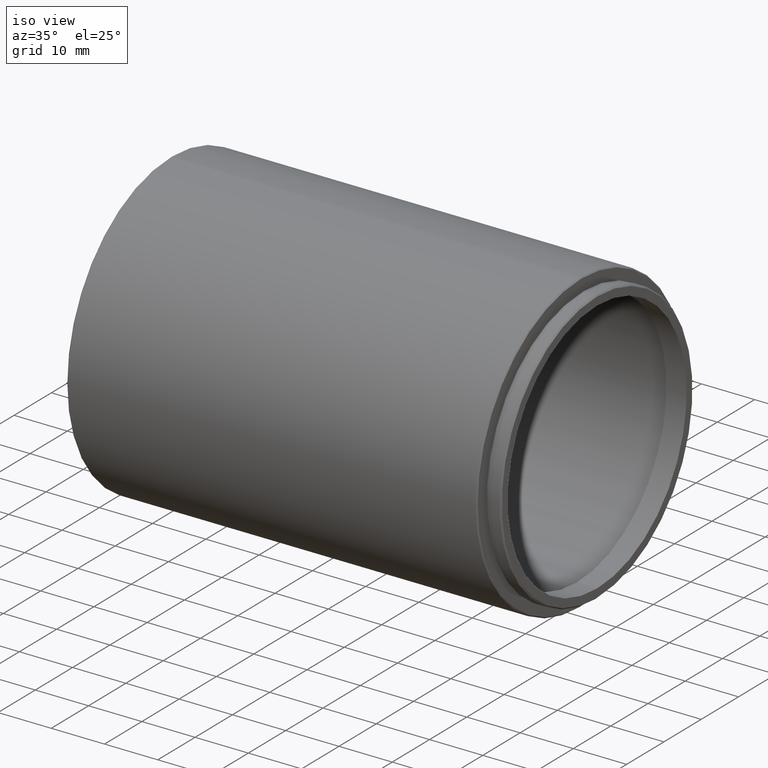
[diagram: clean part render]
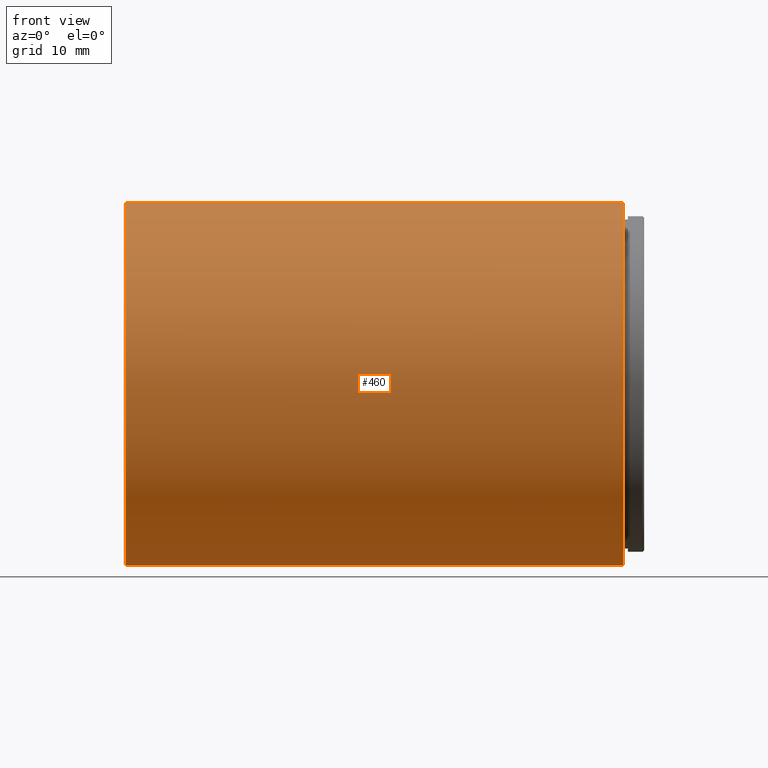
[diagram: tour spotlight — one face highlighted and labeled with its STEP entity id]
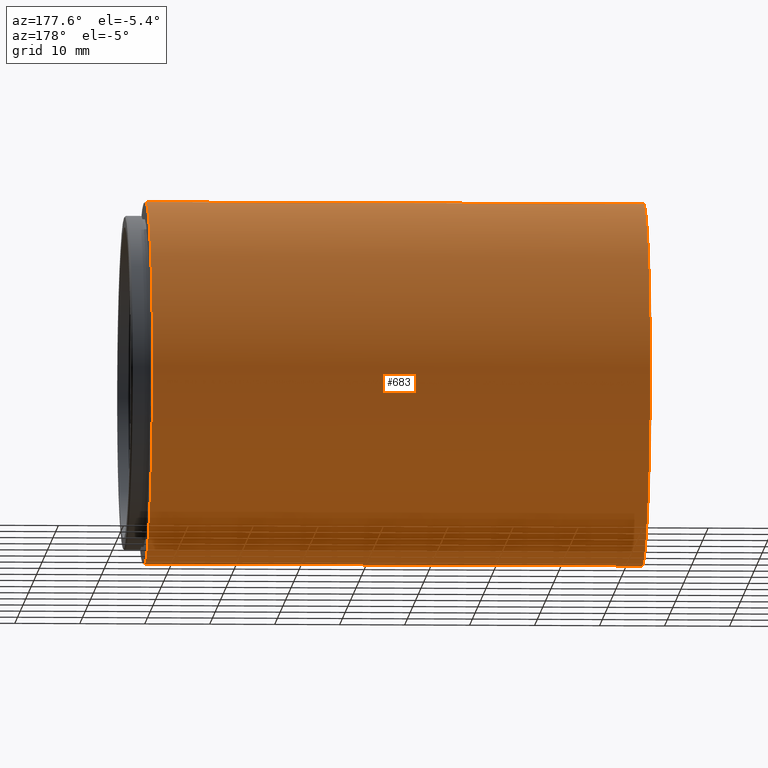
[diagram: tour spotlight — one face highlighted and labeled with its STEP entity id]
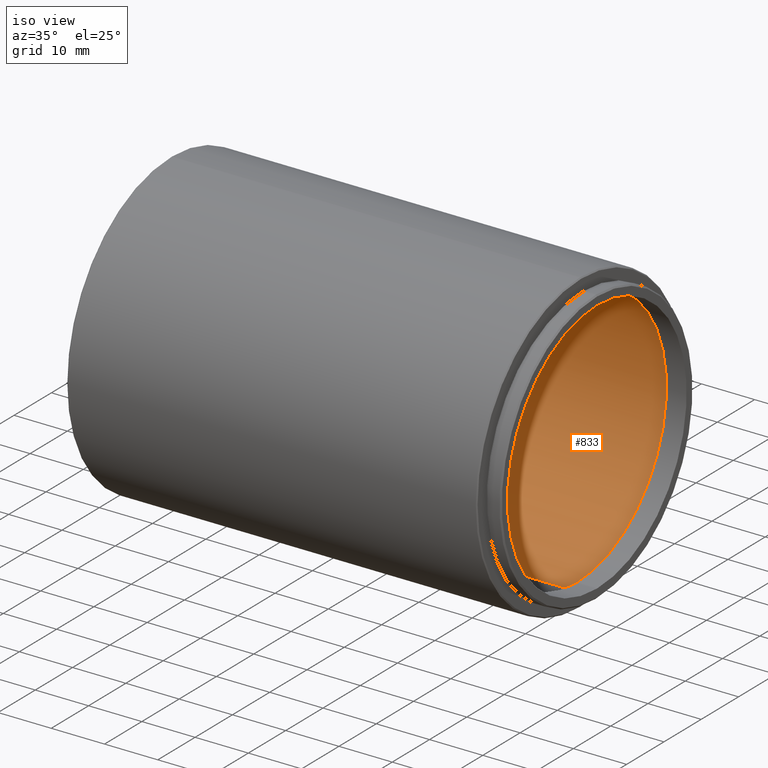
[diagram: tour spotlight — one face highlighted and labeled with its STEP entity id]
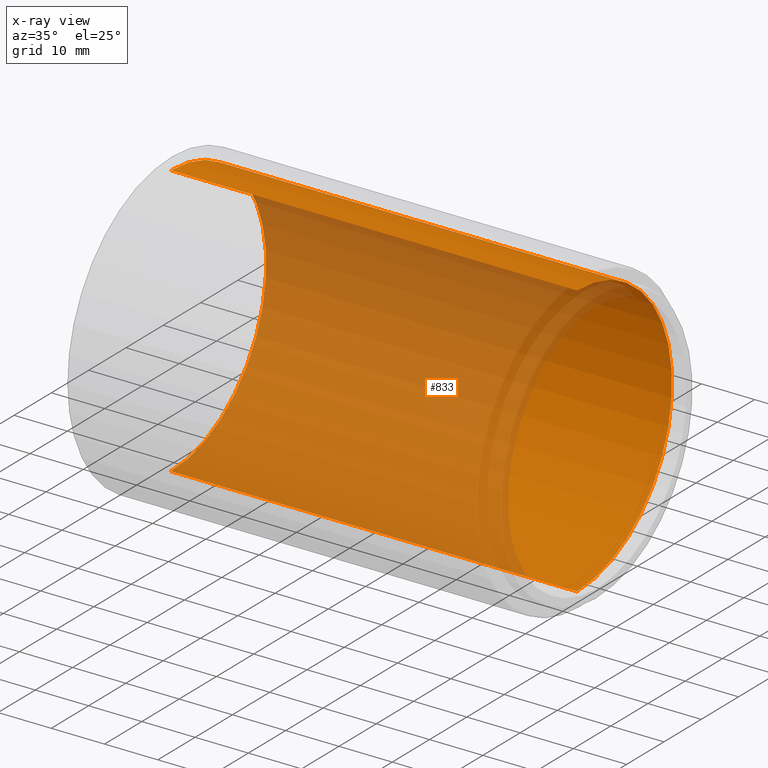
[diagram: x-ray of the same camera — body ghosted, this tour face saturated]
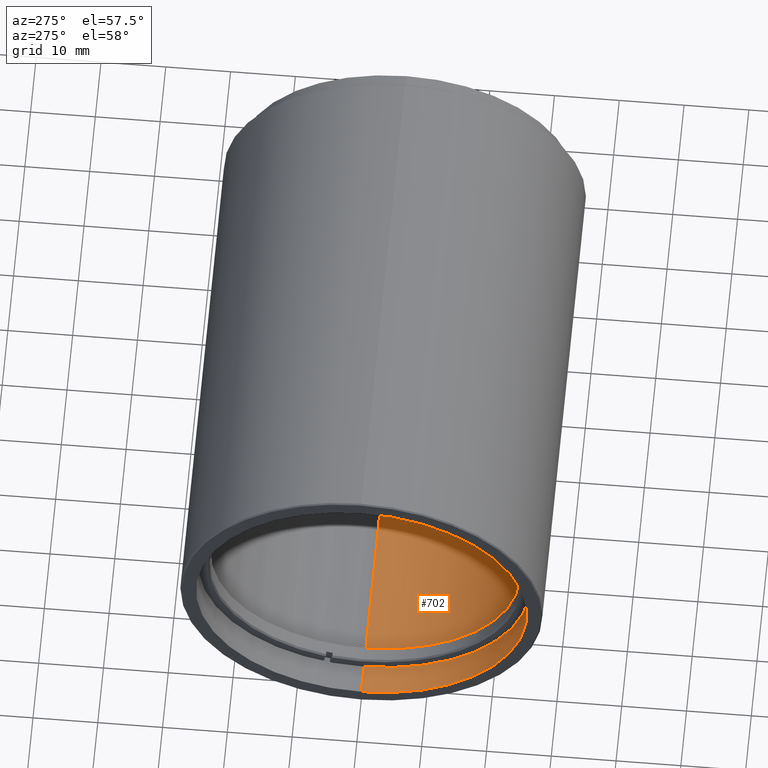
[diagram: tour spotlight — one face highlighted and labeled with its STEP entity id]
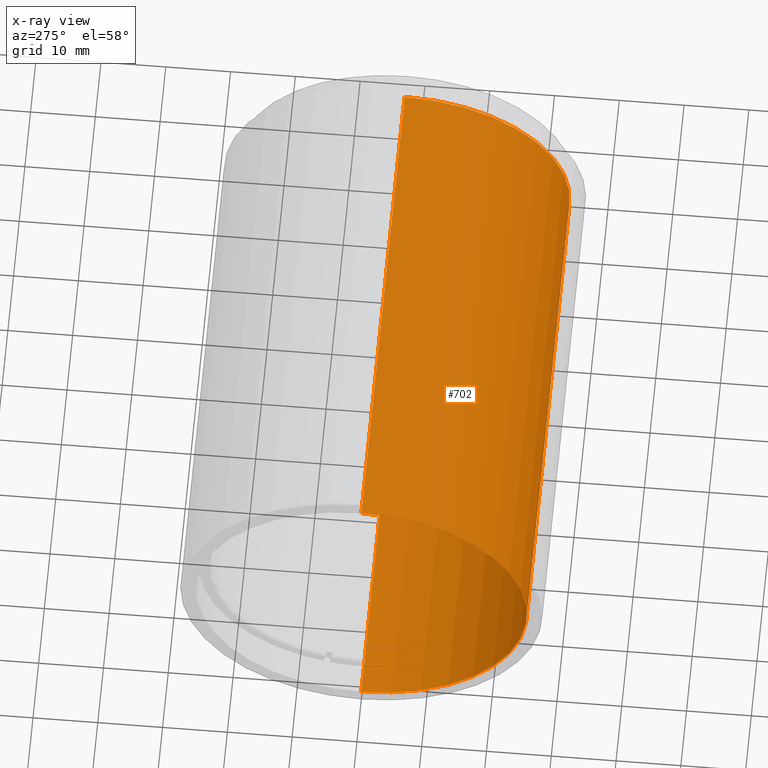
[diagram: x-ray of the same camera — body ghosted, this tour face saturated]
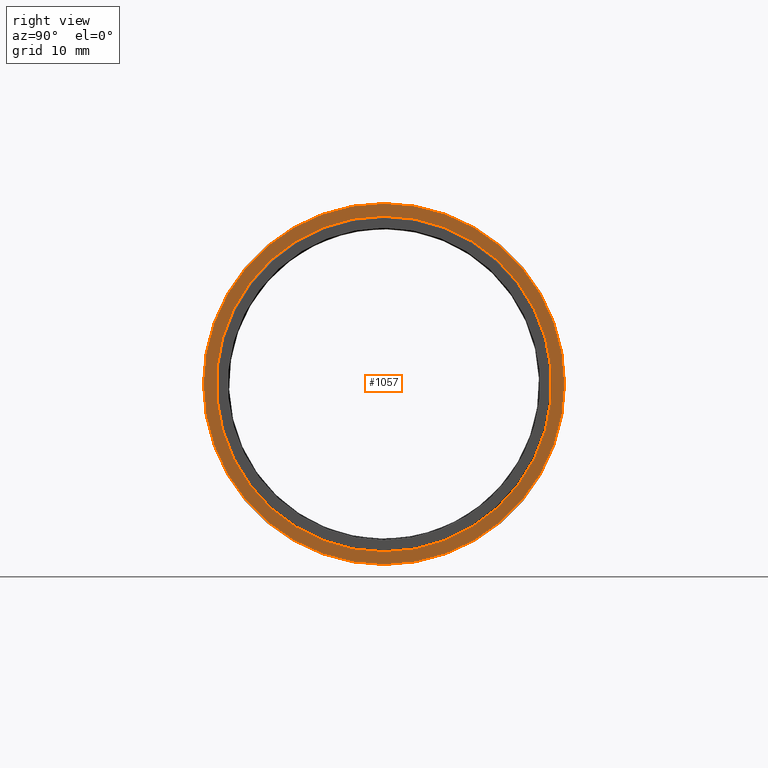
[diagram: tour spotlight — one face highlighted and labeled with its STEP entity id]
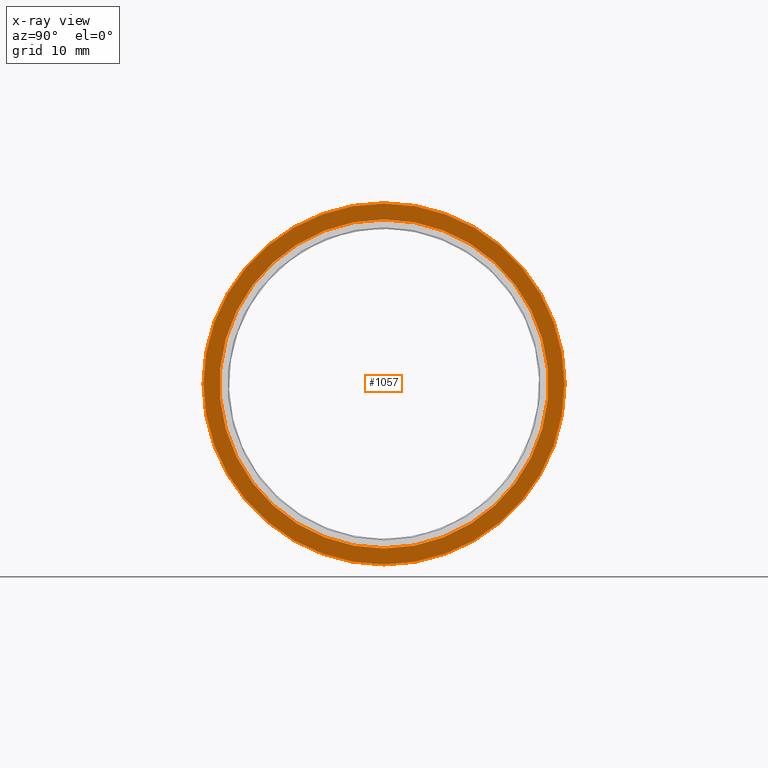
[diagram: x-ray of the same camera — body ghosted, this tour face saturated]
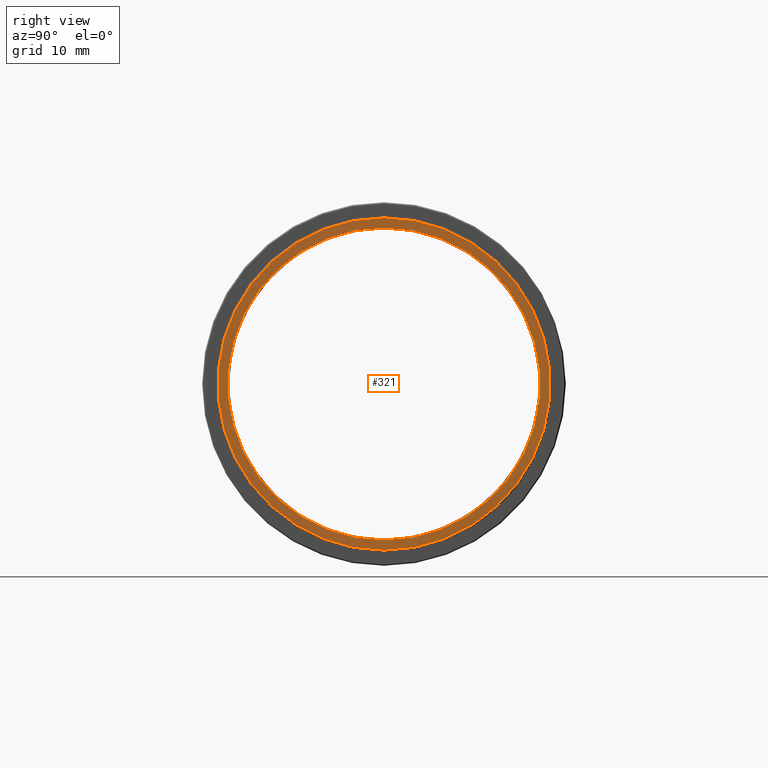
[diagram: tour spotlight — one face highlighted and labeled with its STEP entity id]
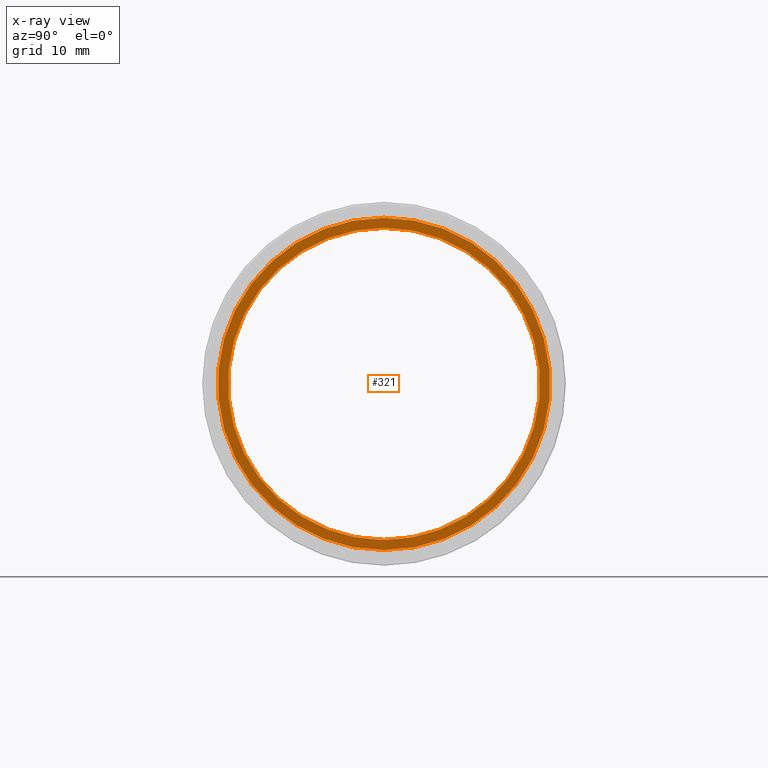
[diagram: x-ray of the same camera — body ghosted, this tour face saturated]
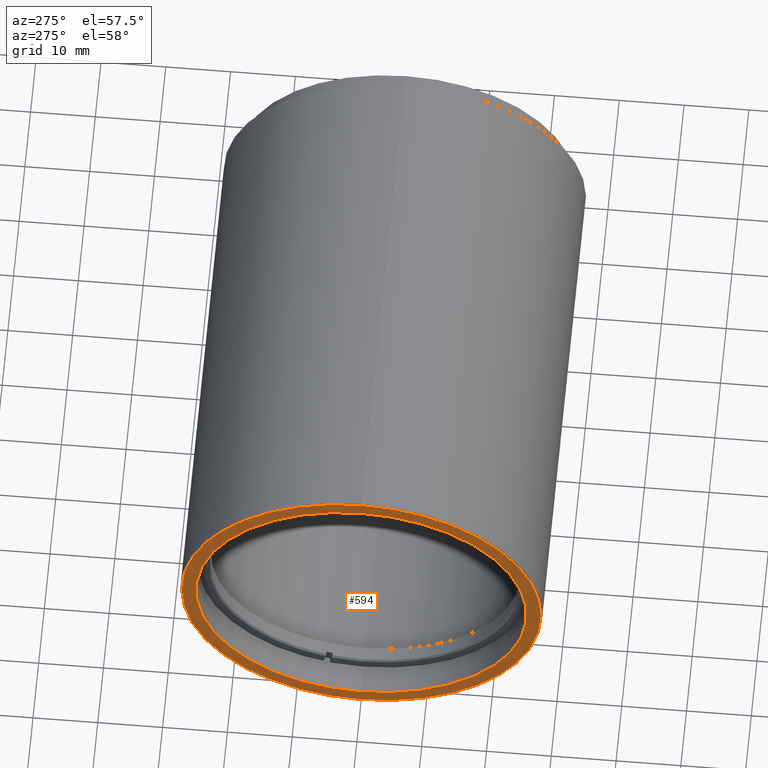
[diagram: tour spotlight — one face highlighted and labeled with its STEP entity id]
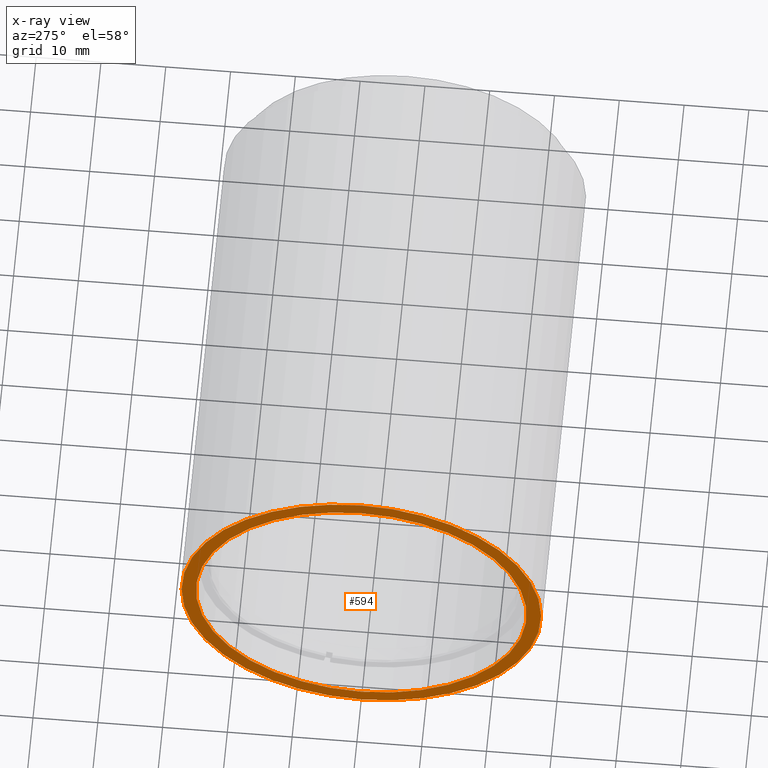
[diagram: x-ray of the same camera — body ghosted, this tour face saturated]
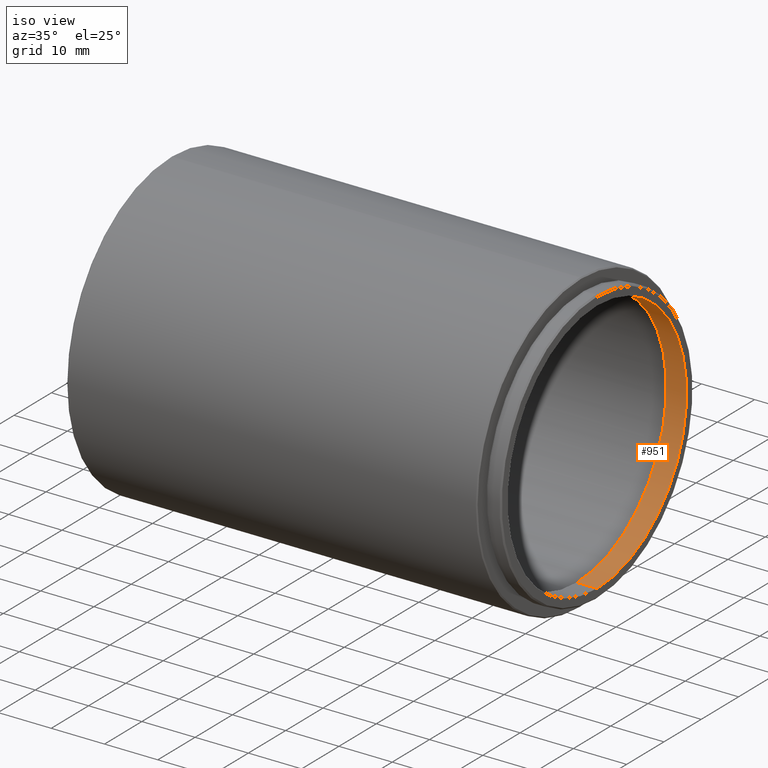
[diagram: tour spotlight — one face highlighted and labeled with its STEP entity id]
A machine part: a face-by-face anatomy tour. The part has 34 B-rep faces; the first image is the clean iso view, then the 8 largest visible faces are spotlighted one at a time (largest first), each with its STEP entity span.

Face 1 — front view, entity #460. In plain terms, the highlighted cylindrical surface (partial cylindrical patch) has radius 27.95 mm, axis along (-1, -0, -0).
Definition (entity closure, byte-faithful):
#83 = DIRECTION ( 'NONE',  ( 1.000000000000000000, 0.000000000000000000, 0.000000000000000000 ) ) ;
#133 = ORIENTED_EDGE ( 'NONE', *, *, #140, .F. ) ;
#140 = EDGE_CURVE ( 'NONE', #1204, #844, #1220, .T. ) ;
#145 = AXIS2_PLACEMENT_3D ( 'NONE', #708, #602, #593 ) ;
#161 = CYLINDRICAL_SURFACE ( 'NONE', #145, 27.94999999999999929 ) ;
#228 = CARTESIAN_POINT ( 'NONE',  ( -73.27400000000001512, -20.10857142857141611, -27.94999999999999929 ) ) ;
#268 = DIRECTION ( 'NONE',  ( -1.000000000000000000, -0.000000000000000000, -0.000000000000000000 ) ) ;
#330 = CARTESIAN_POINT ( 'NONE',  ( 3.326000000000004952, -20.10857142857141966, 27.94999999999999929 ) ) ;
#331 = EDGE_CURVE ( 'NONE', #1459, #565, #859, .T. ) ;
#338 = ORIENTED_EDGE ( 'NONE', *, *, #361, .T. ) ;
#361 = EDGE_CURVE ( 'NONE', #1204, #1459, #653, .T. ) ;
#385 = AXIS2_PLACEMENT_3D ( 'NONE', #816, #83, #445 ) ;
#445 = DIRECTION ( 'NONE',  ( 0.000000000000000000, 0.000000000000000000, 1.000000000000000000 ) ) ;
#460 = ADVANCED_FACE ( 'NONE', ( #1008 ), #161, .T. ) ;
#467 = DIRECTION ( 'NONE',  ( -1.000000000000000000, 0.000000000000000000, 0.000000000000000000 ) ) ;
#565 = VERTEX_POINT ( 'NONE', #858 ) ;
#593 = DIRECTION ( 'NONE',  ( 0.000000000000000000, 0.000000000000000000, 1.000000000000000000 ) ) ;
#602 = DIRECTION ( 'NONE',  ( -1.000000000000000000, -0.000000000000000000, -0.000000000000000000 ) ) ;
#653 = CIRCLE ( 'NONE', #1364, 27.94999999999999929 ) ;
#708 = CARTESIAN_POINT ( 'NONE',  ( 3.525999999999982926, -20.10857142857141966, 0.000000000000000000 ) ) ;
#720 = ORIENTED_EDGE ( 'NONE', *, *, #331, .T. ) ;
#726 = DIRECTION ( 'NONE',  ( 0.000000000000000000, 0.000000000000000000, -1.000000000000000000 ) ) ;
#816 = CARTESIAN_POINT ( 'NONE',  ( -73.27400000000001512, -20.10857142857141966, 0.000000000000000000 ) ) ;
#819 = DIRECTION ( 'NONE',  ( -1.000000000000000000, -0.000000000000000000, -0.000000000000000000 ) ) ;
#844 = VERTEX_POINT ( 'NONE', #228 ) ;
#858 = CARTESIAN_POINT ( 'NONE',  ( -73.27400000000001512, -20.10857142857141966, 27.94999999999999929 ) ) ;
#859 = LINE ( 'NONE', #1297, #1112 ) ;
#908 = CIRCLE ( 'NONE', #385, 27.94999999999999929 ) ;
#1008 = FACE_OUTER_BOUND ( 'NONE', #1134, .T. ) ;
#1071 = VECTOR ( 'NONE', #268, 1000.000000000000000 ) ;
#1090 = CARTESIAN_POINT ( 'NONE',  ( 3.326000000000004952, -20.10857142857141966, 0.000000000000000000 ) ) ;
#1112 = VECTOR ( 'NONE', #819, 1000.000000000000000 ) ;
#1134 = EDGE_LOOP ( 'NONE', ( #133, #338, #720, #1435 ) ) ;
#1204 = VERTEX_POINT ( 'NONE', #1307 ) ;
#1220 = LINE ( 'NONE', #1489, #1071 ) ;
#1297 = CARTESIAN_POINT ( 'NONE',  ( 3.525999999999982926, -20.10857142857141966, 27.94999999999999929 ) ) ;
#1307 = CARTESIAN_POINT ( 'NONE',  ( 3.326000000000004952, -20.10857142857141611, -27.94999999999999929 ) ) ;
#1364 = AXIS2_PLACEMENT_3D ( 'NONE', #1090, #467, #726 ) ;
#1435 = ORIENTED_EDGE ( 'NONE', *, *, #1448, .T. ) ;
#1448 = EDGE_CURVE ( 'NONE', #565, #844, #908, .T. ) ;
#1459 = VERTEX_POINT ( 'NONE', #330 ) ;
#1489 = CARTESIAN_POINT ( 'NONE',  ( 3.525999999999982926, -20.10857142857141611, -27.94999999999999929 ) ) ;

Face 2 — auxiliary view, entity #683. In plain terms, the highlighted cylindrical surface (partial cylindrical patch) has radius 27.95 mm, axis along (-1, -0, -0).
Definition (entity closure, byte-faithful):
#21 = CARTESIAN_POINT ( 'NONE',  ( 3.525999999999982926, -20.10857142857141966, 0.000000000000000000 ) ) ;
#43 = FACE_OUTER_BOUND ( 'NONE', #643, .T. ) ;
#140 = EDGE_CURVE ( 'NONE', #1204, #844, #1220, .T. ) ;
#224 = AXIS2_PLACEMENT_3D ( 'NONE', #21, #1505, #1019 ) ;
#228 = CARTESIAN_POINT ( 'NONE',  ( -73.27400000000001512, -20.10857142857141611, -27.94999999999999929 ) ) ;
#268 = DIRECTION ( 'NONE',  ( -1.000000000000000000, -0.000000000000000000, -0.000000000000000000 ) ) ;
#269 = ORIENTED_EDGE ( 'NONE', *, *, #1514, .T. ) ;
#283 = DIRECTION ( 'NONE',  ( -1.000000000000000000, 0.000000000000000000, 0.000000000000000000 ) ) ;
#296 = CIRCLE ( 'NONE', #1177, 27.94999999999999929 ) ;
#330 = CARTESIAN_POINT ( 'NONE',  ( 3.326000000000004952, -20.10857142857141966, 27.94999999999999929 ) ) ;
#331 = EDGE_CURVE ( 'NONE', #1459, #565, #859, .T. ) ;
#473 = CARTESIAN_POINT ( 'NONE',  ( -73.27400000000001512, -20.10857142857141966, 0.000000000000000000 ) ) ;
#483 = DIRECTION ( 'NONE',  ( 0.000000000000000000, 0.000000000000000000, 1.000000000000000000 ) ) ;
#565 = VERTEX_POINT ( 'NONE', #858 ) ;
#606 = EDGE_CURVE ( 'NONE', #1459, #1204, #948, .T. ) ;
#639 = CARTESIAN_POINT ( 'NONE',  ( 3.326000000000004952, -20.10857142857141966, 0.000000000000000000 ) ) ;
#643 = EDGE_LOOP ( 'NONE', ( #1391, #1200, #269, #1080 ) ) ;
#683 = ADVANCED_FACE ( 'NONE', ( #43 ), #1552, .T. ) ;
#752 = DIRECTION ( 'NONE',  ( 0.000000000000000000, 0.000000000000000000, -1.000000000000000000 ) ) ;
#819 = DIRECTION ( 'NONE',  ( -1.000000000000000000, -0.000000000000000000, -0.000000000000000000 ) ) ;
#844 = VERTEX_POINT ( 'NONE', #228 ) ;
#858 = CARTESIAN_POINT ( 'NONE',  ( -73.27400000000001512, -20.10857142857141966, 27.94999999999999929 ) ) ;
#859 = LINE ( 'NONE', #1297, #1112 ) ;
#948 = CIRCLE ( 'NONE', #1230, 27.94999999999999929 ) ;
#1019 = DIRECTION ( 'NONE',  ( 0.000000000000000000, 0.000000000000000000, 1.000000000000000000 ) ) ;
#1071 = VECTOR ( 'NONE', #268, 1000.000000000000000 ) ;
#1080 = ORIENTED_EDGE ( 'NONE', *, *, #331, .F. ) ;
#1112 = VECTOR ( 'NONE', #819, 1000.000000000000000 ) ;
#1177 = AXIS2_PLACEMENT_3D ( 'NONE', #473, #1325, #483 ) ;
#1200 = ORIENTED_EDGE ( 'NONE', *, *, #140, .T. ) ;
#1204 = VERTEX_POINT ( 'NONE', #1307 ) ;
#1220 = LINE ( 'NONE', #1489, #1071 ) ;
#1230 = AXIS2_PLACEMENT_3D ( 'NONE', #639, #283, #752 ) ;
#1297 = CARTESIAN_POINT ( 'NONE',  ( 3.525999999999982926, -20.10857142857141966, 27.94999999999999929 ) ) ;
#1307 = CARTESIAN_POINT ( 'NONE',  ( 3.326000000000004952, -20.10857142857141611, -27.94999999999999929 ) ) ;
#1325 = DIRECTION ( 'NONE',  ( 1.000000000000000000, 0.000000000000000000, 0.000000000000000000 ) ) ;
#1391 = ORIENTED_EDGE ( 'NONE', *, *, #606, .T. ) ;
#1459 = VERTEX_POINT ( 'NONE', #330 ) ;
#1489 = CARTESIAN_POINT ( 'NONE',  ( 3.525999999999982926, -20.10857142857141611, -27.94999999999999929 ) ) ;
#1505 = DIRECTION ( 'NONE',  ( -1.000000000000000000, -0.000000000000000000, -0.000000000000000000 ) ) ;
#1514 = EDGE_CURVE ( 'NONE', #844, #565, #296, .T. ) ;
#1552 = CYLINDRICAL_SURFACE ( 'NONE', #224, 27.94999999999999929 ) ;

Face 3 — iso view, entity #833. An x-ray twin of the same camera follows (body ghosted, this face saturated) — the face is partly hidden behind the body. In plain terms, the highlighted cylindrical surface (partial cylindrical patch) has radius 25.525 mm, axis along (1, -0, -0).
Definition (entity closure, byte-faithful):
#33 = CARTESIAN_POINT ( 'NONE',  ( 2.725999999999982659, -20.10857142857141611, 25.52499999999999858 ) ) ;
#55 = CYLINDRICAL_SURFACE ( 'NONE', #923, 25.52499999999999858 ) ;
#58 = CARTESIAN_POINT ( 'NONE',  ( 2.725999999999982659, -20.10857142857141966, 0.000000000000000000 ) ) ;
#152 = VERTEX_POINT ( 'NONE', #33 ) ;
#234 = ORIENTED_EDGE ( 'NONE', *, *, #1305, .F. ) ;
#299 = CARTESIAN_POINT ( 'NONE',  ( 2.725999999999982659, -20.10857142857141966, -25.52499999999999858 ) ) ;
#302 = ORIENTED_EDGE ( 'NONE', *, *, #373, .T. ) ;
#347 = AXIS2_PLACEMENT_3D ( 'NONE', #58, #411, #1269 ) ;
#373 = EDGE_CURVE ( 'NONE', #1184, #820, #895, .T. ) ;
#411 = DIRECTION ( 'NONE',  ( -1.000000000000000000, 0.000000000000000000, 0.000000000000000000 ) ) ;
#430 = VECTOR ( 'NONE', #716, 1000.000000000000000 ) ;
#439 = CARTESIAN_POINT ( 'NONE',  ( -73.47400000000001796, -20.10857142857141966, 0.000000000000000000 ) ) ;
#458 = CARTESIAN_POINT ( 'NONE',  ( -73.47400000000001796, -20.10857142857141966, 0.000000000000000000 ) ) ;
#470 = CARTESIAN_POINT ( 'NONE',  ( -73.47400000000001796, -20.10857142857141611, 25.52499999999999858 ) ) ;
#519 = LINE ( 'NONE', #470, #430 ) ;
#579 = DIRECTION ( 'NONE',  ( 0.000000000000000000, 0.000000000000000000, 1.000000000000000000 ) ) ;
#662 = CARTESIAN_POINT ( 'NONE',  ( -73.47400000000001796, -20.10857142857141966, -25.52499999999999858 ) ) ;
#669 = VECTOR ( 'NONE', #1210, 1000.000000000000000 ) ;
#677 = ORIENTED_EDGE ( 'NONE', *, *, #1478, .T. ) ;
#716 = DIRECTION ( 'NONE',  ( 1.000000000000000000, -0.000000000000000000, -0.000000000000000000 ) ) ;
#739 = AXIS2_PLACEMENT_3D ( 'NONE', #458, #961, #579 ) ;
#763 = VERTEX_POINT ( 'NONE', #299 ) ;
#801 = EDGE_CURVE ( 'NONE', #152, #763, #1573, .T. ) ;
#815 = DIRECTION ( 'NONE',  ( 1.000000000000000000, -0.000000000000000000, -0.000000000000000000 ) ) ;
#820 = VERTEX_POINT ( 'NONE', #662 ) ;
#826 = DIRECTION ( 'NONE',  ( 0.000000000000000000, 0.000000000000000000, -1.000000000000000000 ) ) ;
#833 = ADVANCED_FACE ( 'NONE', ( #1397 ), #55, .F. ) ;
#895 = CIRCLE ( 'NONE', #739, 25.52499999999999858 ) ;
#923 = AXIS2_PLACEMENT_3D ( 'NONE', #439, #815, #826 ) ;
#942 = CARTESIAN_POINT ( 'NONE',  ( -73.47400000000001796, -20.10857142857141611, 25.52499999999999858 ) ) ;
#961 = DIRECTION ( 'NONE',  ( -1.000000000000000000, 0.000000000000000000, 0.000000000000000000 ) ) ;
#1005 = LINE ( 'NONE', #1203, #669 ) ;
#1116 = EDGE_LOOP ( 'NONE', ( #234, #302, #677, #1583 ) ) ;
#1184 = VERTEX_POINT ( 'NONE', #942 ) ;
#1203 = CARTESIAN_POINT ( 'NONE',  ( -73.47400000000001796, -20.10857142857141966, -25.52499999999999858 ) ) ;
#1210 = DIRECTION ( 'NONE',  ( 1.000000000000000000, -0.000000000000000000, -0.000000000000000000 ) ) ;
#1269 = DIRECTION ( 'NONE',  ( 0.000000000000000000, 0.000000000000000000, 1.000000000000000000 ) ) ;
#1305 = EDGE_CURVE ( 'NONE', #1184, #152, #519, .T. ) ;
#1397 = FACE_OUTER_BOUND ( 'NONE', #1116, .T. ) ;
#1478 = EDGE_CURVE ( 'NONE', #820, #763, #1005, .T. ) ;
#1573 = CIRCLE ( 'NONE', #347, 25.52499999999999858 ) ;
#1583 = ORIENTED_EDGE ( 'NONE', *, *, #801, .F. ) ;

Face 4 — auxiliary view, entity #702. An x-ray twin of the same camera follows (body ghosted, this face saturated) — the face is partly hidden behind the body. In plain terms, the highlighted cylindrical surface (partial cylindrical patch) has radius 25.525 mm, axis along (1, -0, -0).
Definition (entity closure, byte-faithful):
#8 = CYLINDRICAL_SURFACE ( 'NONE', #1105, 25.52499999999999858 ) ;
#33 = CARTESIAN_POINT ( 'NONE',  ( 2.725999999999982659, -20.10857142857141611, 25.52499999999999858 ) ) ;
#147 = DIRECTION ( 'NONE',  ( -1.000000000000000000, 0.000000000000000000, 0.000000000000000000 ) ) ;
#152 = VERTEX_POINT ( 'NONE', #33 ) ;
#189 = ORIENTED_EDGE ( 'NONE', *, *, #1305, .T. ) ;
#299 = CARTESIAN_POINT ( 'NONE',  ( 2.725999999999982659, -20.10857142857141966, -25.52499999999999858 ) ) ;
#405 = DIRECTION ( 'NONE',  ( 0.000000000000000000, 0.000000000000000000, 1.000000000000000000 ) ) ;
#430 = VECTOR ( 'NONE', #716, 1000.000000000000000 ) ;
#463 = CARTESIAN_POINT ( 'NONE',  ( 2.725999999999982659, -20.10857142857141966, 0.000000000000000000 ) ) ;
#470 = CARTESIAN_POINT ( 'NONE',  ( -73.47400000000001796, -20.10857142857141611, 25.52499999999999858 ) ) ;
#480 = AXIS2_PLACEMENT_3D ( 'NONE', #463, #589, #718 ) ;
#519 = LINE ( 'NONE', #470, #430 ) ;
#523 = AXIS2_PLACEMENT_3D ( 'NONE', #1361, #147, #405 ) ;
#589 = DIRECTION ( 'NONE',  ( -1.000000000000000000, 0.000000000000000000, 0.000000000000000000 ) ) ;
#627 = EDGE_CURVE ( 'NONE', #820, #1184, #1268, .T. ) ;
#632 = CIRCLE ( 'NONE', #480, 25.52499999999999858 ) ;
#642 = ORIENTED_EDGE ( 'NONE', *, *, #862, .F. ) ;
#662 = CARTESIAN_POINT ( 'NONE',  ( -73.47400000000001796, -20.10857142857141966, -25.52499999999999858 ) ) ;
#669 = VECTOR ( 'NONE', #1210, 1000.000000000000000 ) ;
#702 = ADVANCED_FACE ( 'NONE', ( #1422 ), #8, .F. ) ;
#716 = DIRECTION ( 'NONE',  ( 1.000000000000000000, -0.000000000000000000, -0.000000000000000000 ) ) ;
#718 = DIRECTION ( 'NONE',  ( 0.000000000000000000, 0.000000000000000000, 1.000000000000000000 ) ) ;
#763 = VERTEX_POINT ( 'NONE', #299 ) ;
#820 = VERTEX_POINT ( 'NONE', #662 ) ;
#862 = EDGE_CURVE ( 'NONE', #763, #152, #632, .T. ) ;
#914 = DIRECTION ( 'NONE',  ( 0.000000000000000000, 0.000000000000000000, -1.000000000000000000 ) ) ;
#917 = ORIENTED_EDGE ( 'NONE', *, *, #1478, .F. ) ;
#942 = CARTESIAN_POINT ( 'NONE',  ( -73.47400000000001796, -20.10857142857141611, 25.52499999999999858 ) ) ;
#1005 = LINE ( 'NONE', #1203, #669 ) ;
#1051 = EDGE_LOOP ( 'NONE', ( #1416, #189, #642, #917 ) ) ;
#1105 = AXIS2_PLACEMENT_3D ( 'NONE', #1140, #1260, #914 ) ;
#1140 = CARTESIAN_POINT ( 'NONE',  ( -73.47400000000001796, -20.10857142857141966, 0.000000000000000000 ) ) ;
#1184 = VERTEX_POINT ( 'NONE', #942 ) ;
#1203 = CARTESIAN_POINT ( 'NONE',  ( -73.47400000000001796, -20.10857142857141966, -25.52499999999999858 ) ) ;
#1210 = DIRECTION ( 'NONE',  ( 1.000000000000000000, -0.000000000000000000, -0.000000000000000000 ) ) ;
#1260 = DIRECTION ( 'NONE',  ( 1.000000000000000000, -0.000000000000000000, -0.000000000000000000 ) ) ;
#1268 = CIRCLE ( 'NONE', #523, 25.52499999999999858 ) ;
#1305 = EDGE_CURVE ( 'NONE', #1184, #152, #519, .T. ) ;
#1361 = CARTESIAN_POINT ( 'NONE',  ( -73.47400000000001796, -20.10857142857141966, 0.000000000000000000 ) ) ;
#1416 = ORIENTED_EDGE ( 'NONE', *, *, #627, .T. ) ;
#1422 = FACE_OUTER_BOUND ( 'NONE', #1051, .T. ) ;
#1478 = EDGE_CURVE ( 'NONE', #820, #763, #1005, .T. ) ;

Face 5 — right view, entity #1057. An x-ray twin of the same camera follows (body ghosted, this face saturated) — the face is partly hidden behind the body. In plain terms, the highlighted planar face has unit normal (1, 0, 0).
Definition (entity closure, byte-faithful):
#25 = CARTESIAN_POINT ( 'NONE',  ( 3.525999999999982926, -20.10857142857141966, 0.000000000000000000 ) ) ;
#39 = AXIS2_PLACEMENT_3D ( 'NONE', #308, #554, #1406 ) ;
#56 = CARTESIAN_POINT ( 'NONE',  ( 3.525999999999982926, -20.10857142857141966, 0.000000000000000000 ) ) ;
#63 = DIRECTION ( 'NONE',  ( 1.000000000000000000, 0.000000000000000000, 0.000000000000000000 ) ) ;
#111 = AXIS2_PLACEMENT_3D ( 'NONE', #1327, #1447, #474 ) ;
#137 = CARTESIAN_POINT ( 'NONE',  ( 3.525999999999982926, -20.10857142857141611, -27.75000000000002132 ) ) ;
#177 = EDGE_CURVE ( 'NONE', #286, #865, #1556, .T. ) ;
#182 = AXIS2_PLACEMENT_3D ( 'NONE', #56, #63, #784 ) ;
#253 = CARTESIAN_POINT ( 'NONE',  ( 3.525999999999982926, -20.10857142857141966, 0.000000000000000000 ) ) ;
#286 = VERTEX_POINT ( 'NONE', #652 ) ;
#308 = CARTESIAN_POINT ( 'NONE',  ( 3.525999999999982926, -20.10857142857141966, 0.000000000000000000 ) ) ;
#339 = EDGE_LOOP ( 'NONE', ( #1149, #567 ) ) ;
#381 = EDGE_LOOP ( 'NONE', ( #1542, #898 ) ) ;
#382 = EDGE_CURVE ( 'NONE', #1254, #603, #1286, .T. ) ;
#390 = DIRECTION ( 'NONE',  ( 1.000000000000000000, 0.000000000000000000, 0.000000000000000000 ) ) ;
#397 = FACE_OUTER_BOUND ( 'NONE', #381, .T. ) ;
#416 = AXIS2_PLACEMENT_3D ( 'NONE', #25, #390, #1252 ) ;
#422 = PLANE ( 'NONE',  #182 ) ;
#474 = DIRECTION ( 'NONE',  ( 0.000000000000000000, 0.000000000000000000, -1.000000000000000000 ) ) ;
#554 = DIRECTION ( 'NONE',  ( 1.000000000000000000, 0.000000000000000000, 0.000000000000000000 ) ) ;
#567 = ORIENTED_EDGE ( 'NONE', *, *, #177, .F. ) ;
#603 = VERTEX_POINT ( 'NONE', #137 ) ;
#652 = CARTESIAN_POINT ( 'NONE',  ( 3.525999999999982926, -20.10857142857141611, -25.30000000000000071 ) ) ;
#784 = DIRECTION ( 'NONE',  ( 0.000000000000000000, 0.000000000000000000, -1.000000000000000000 ) ) ;
#865 = VERTEX_POINT ( 'NONE', #1216 ) ;
#898 = ORIENTED_EDGE ( 'NONE', *, *, #1078, .T. ) ;
#972 = DIRECTION ( 'NONE',  ( 1.000000000000000000, 0.000000000000000000, 0.000000000000000000 ) ) ;
#1057 = ADVANCED_FACE ( 'NONE', ( #397, #1439 ), #422, .T. ) ;
#1078 = EDGE_CURVE ( 'NONE', #603, #1254, #1156, .T. ) ;
#1103 = CARTESIAN_POINT ( 'NONE',  ( 3.525999999999982926, -20.10857142857141966, 27.75000000000002132 ) ) ;
#1110 = DIRECTION ( 'NONE',  ( 0.000000000000000000, 0.000000000000000000, -1.000000000000000000 ) ) ;
#1149 = ORIENTED_EDGE ( 'NONE', *, *, #1214, .F. ) ;
#1156 = CIRCLE ( 'NONE', #39, 27.75000000000002132 ) ;
#1180 = AXIS2_PLACEMENT_3D ( 'NONE', #253, #972, #1110 ) ;
#1214 = EDGE_CURVE ( 'NONE', #865, #286, #1544, .T. ) ;
#1216 = CARTESIAN_POINT ( 'NONE',  ( 3.525999999999982926, -20.10857142857141966, 25.30000000000000071 ) ) ;
#1252 = DIRECTION ( 'NONE',  ( 0.000000000000000000, 0.000000000000000000, -1.000000000000000000 ) ) ;
#1254 = VERTEX_POINT ( 'NONE', #1103 ) ;
#1286 = CIRCLE ( 'NONE', #111, 27.75000000000002132 ) ;
#1327 = CARTESIAN_POINT ( 'NONE',  ( 3.525999999999982926, -20.10857142857141966, 0.000000000000000000 ) ) ;
#1406 = DIRECTION ( 'NONE',  ( 0.000000000000000000, 0.000000000000000000, -1.000000000000000000 ) ) ;
#1439 = FACE_BOUND ( 'NONE', #339, .T. ) ;
#1447 = DIRECTION ( 'NONE',  ( 1.000000000000000000, 0.000000000000000000, 0.000000000000000000 ) ) ;
#1542 = ORIENTED_EDGE ( 'NONE', *, *, #382, .T. ) ;
#1544 = CIRCLE ( 'NONE', #1180, 25.30000000000000071 ) ;
#1556 = CIRCLE ( 'NONE', #416, 25.30000000000000071 ) ;

Face 6 — right view, entity #321. An x-ray twin of the same camera follows (body ghosted, this face saturated) — the face is partly hidden behind the body. In plain terms, the highlighted planar face has unit normal (1, 0, 0).
Definition (entity closure, byte-faithful):
#2 = DIRECTION ( 'NONE',  ( 1.000000000000000000, 0.000000000000000000, 0.000000000000000000 ) ) ;
#34 = ORIENTED_EDGE ( 'NONE', *, *, #786, .T. ) ;
#173 = DIRECTION ( 'NONE',  ( 1.000000000000000000, 0.000000000000000000, 0.000000000000000000 ) ) ;
#192 = DIRECTION ( 'NONE',  ( 1.000000000000000000, 0.000000000000000000, 0.000000000000000000 ) ) ;
#213 = CARTESIAN_POINT ( 'NONE',  ( 6.525999999999982926, -20.10857142857141611, 24.00000000000000355 ) ) ;
#270 = EDGE_LOOP ( 'NONE', ( #827, #1227 ) ) ;
#288 = CARTESIAN_POINT ( 'NONE',  ( 6.525999999999982926, -20.10857142857141611, -25.55000000000003268 ) ) ;
#319 = DIRECTION ( 'NONE',  ( 1.000000000000000000, 0.000000000000000000, 0.000000000000000000 ) ) ;
#321 = ADVANCED_FACE ( 'NONE', ( #371, #1362 ), #1518, .T. ) ;
#336 = AXIS2_PLACEMENT_3D ( 'NONE', #1335, #2, #1580 ) ;
#353 = DIRECTION ( 'NONE',  ( 1.000000000000000000, 0.000000000000000000, 0.000000000000000000 ) ) ;
#371 = FACE_OUTER_BOUND ( 'NONE', #1186, .T. ) ;
#678 = VERTEX_POINT ( 'NONE', #1131 ) ;
#701 = CIRCLE ( 'NONE', #336, 24.00000000000000355 ) ;
#762 = CIRCLE ( 'NONE', #1086, 25.55000000000003268 ) ;
#778 = DIRECTION ( 'NONE',  ( 0.000000000000000000, 0.000000000000000000, -1.000000000000000000 ) ) ;
#786 = EDGE_CURVE ( 'NONE', #1388, #1277, #906, .T. ) ;
#827 = ORIENTED_EDGE ( 'NONE', *, *, #1030, .F. ) ;
#906 = CIRCLE ( 'NONE', #1129, 25.55000000000003268 ) ;
#1030 = EDGE_CURVE ( 'NONE', #678, #1410, #1394, .T. ) ;
#1034 = AXIS2_PLACEMENT_3D ( 'NONE', #1165, #173, #1369 ) ;
#1086 = AXIS2_PLACEMENT_3D ( 'NONE', #1453, #353, #1213 ) ;
#1129 = AXIS2_PLACEMENT_3D ( 'NONE', #1282, #192, #778 ) ;
#1131 = CARTESIAN_POINT ( 'NONE',  ( 6.525999999999982926, -20.10857142857141966, -24.00000000000000355 ) ) ;
#1133 = AXIS2_PLACEMENT_3D ( 'NONE', #1168, #319, #1429 ) ;
#1165 = CARTESIAN_POINT ( 'NONE',  ( 6.525999999999982926, -20.10857142857141966, 0.000000000000000000 ) ) ;
#1168 = CARTESIAN_POINT ( 'NONE',  ( 6.525999999999982926, -20.10857142857141966, 0.000000000000000000 ) ) ;
#1186 = EDGE_LOOP ( 'NONE', ( #1370, #34 ) ) ;
#1213 = DIRECTION ( 'NONE',  ( 0.000000000000000000, 0.000000000000000000, -1.000000000000000000 ) ) ;
#1227 = ORIENTED_EDGE ( 'NONE', *, *, #1291, .F. ) ;
#1277 = VERTEX_POINT ( 'NONE', #1568 ) ;
#1282 = CARTESIAN_POINT ( 'NONE',  ( 6.525999999999982926, -20.10857142857141966, 0.000000000000000000 ) ) ;
#1291 = EDGE_CURVE ( 'NONE', #1410, #678, #701, .T. ) ;
#1314 = EDGE_CURVE ( 'NONE', #1277, #1388, #762, .T. ) ;
#1335 = CARTESIAN_POINT ( 'NONE',  ( 6.525999999999982926, -20.10857142857141966, 0.000000000000000000 ) ) ;
#1362 = FACE_BOUND ( 'NONE', #270, .T. ) ;
#1369 = DIRECTION ( 'NONE',  ( 0.000000000000000000, 0.000000000000000000, -1.000000000000000000 ) ) ;
#1370 = ORIENTED_EDGE ( 'NONE', *, *, #1314, .T. ) ;
#1388 = VERTEX_POINT ( 'NONE', #288 ) ;
#1394 = CIRCLE ( 'NONE', #1034, 24.00000000000000355 ) ;
#1410 = VERTEX_POINT ( 'NONE', #213 ) ;
#1429 = DIRECTION ( 'NONE',  ( 0.000000000000000000, 0.000000000000000000, -1.000000000000000000 ) ) ;
#1453 = CARTESIAN_POINT ( 'NONE',  ( 6.525999999999982926, -20.10857142857141966, 0.000000000000000000 ) ) ;
#1518 = PLANE ( 'NONE',  #1133 ) ;
#1568 = CARTESIAN_POINT ( 'NONE',  ( 6.525999999999982926, -20.10857142857141966, 25.55000000000003268 ) ) ;
#1580 = DIRECTION ( 'NONE',  ( 0.000000000000000000, 0.000000000000000000, -1.000000000000000000 ) ) ;

Face 7 — auxiliary view, entity #594. An x-ray twin of the same camera follows (body ghosted, this face saturated) — the face is partly hidden behind the body. In plain terms, the highlighted planar face has unit normal (-1, 0, 0).
Definition (entity closure, byte-faithful):
#18 = CIRCLE ( 'NONE', #1212, 27.75000000000000711 ) ;
#19 = CARTESIAN_POINT ( 'NONE',  ( -73.47400000000001796, -20.10857142857141611, 27.75000000000000711 ) ) ;
#30 = DIRECTION ( 'NONE',  ( 0.000000000000000000, 0.000000000000000000, 1.000000000000000000 ) ) ;
#147 = DIRECTION ( 'NONE',  ( -1.000000000000000000, 0.000000000000000000, 0.000000000000000000 ) ) ;
#194 = DIRECTION ( 'NONE',  ( 0.000000000000000000, 0.000000000000000000, 1.000000000000000000 ) ) ;
#261 = PLANE ( 'NONE',  #1153 ) ;
#333 = DIRECTION ( 'NONE',  ( -1.000000000000000000, 0.000000000000000000, 0.000000000000000000 ) ) ;
#373 = EDGE_CURVE ( 'NONE', #1184, #820, #895, .T. ) ;
#405 = DIRECTION ( 'NONE',  ( 0.000000000000000000, 0.000000000000000000, 1.000000000000000000 ) ) ;
#428 = CARTESIAN_POINT ( 'NONE',  ( -73.47400000000001796, -20.10857142857141966, 0.000000000000000000 ) ) ;
#458 = CARTESIAN_POINT ( 'NONE',  ( -73.47400000000001796, -20.10857142857141966, 0.000000000000000000 ) ) ;
#515 = DIRECTION ( 'NONE',  ( -1.000000000000000000, 0.000000000000000000, 0.000000000000000000 ) ) ;
#520 = CARTESIAN_POINT ( 'NONE',  ( -73.47400000000001796, -20.10857142857141966, 0.000000000000000000 ) ) ;
#523 = AXIS2_PLACEMENT_3D ( 'NONE', #1361, #147, #405 ) ;
#579 = DIRECTION ( 'NONE',  ( 0.000000000000000000, 0.000000000000000000, 1.000000000000000000 ) ) ;
#594 = ADVANCED_FACE ( 'NONE', ( #1345, #1322 ), #261, .T. ) ;
#627 = EDGE_CURVE ( 'NONE', #820, #1184, #1268, .T. ) ;
#628 = CARTESIAN_POINT ( 'NONE',  ( -73.47400000000001796, -20.10857142857141966, -27.75000000000000711 ) ) ;
#660 = AXIS2_PLACEMENT_3D ( 'NONE', #428, #333, #194 ) ;
#662 = CARTESIAN_POINT ( 'NONE',  ( -73.47400000000001796, -20.10857142857141966, -25.52499999999999858 ) ) ;
#674 = ORIENTED_EDGE ( 'NONE', *, *, #1352, .T. ) ;
#739 = AXIS2_PLACEMENT_3D ( 'NONE', #458, #961, #579 ) ;
#820 = VERTEX_POINT ( 'NONE', #662 ) ;
#822 = ORIENTED_EDGE ( 'NONE', *, *, #373, .F. ) ;
#846 = ORIENTED_EDGE ( 'NONE', *, *, #1428, .T. ) ;
#895 = CIRCLE ( 'NONE', #739, 25.52499999999999858 ) ;
#942 = CARTESIAN_POINT ( 'NONE',  ( -73.47400000000001796, -20.10857142857141611, 25.52499999999999858 ) ) ;
#961 = DIRECTION ( 'NONE',  ( -1.000000000000000000, 0.000000000000000000, 0.000000000000000000 ) ) ;
#975 = EDGE_LOOP ( 'NONE', ( #1495, #822 ) ) ;
#1011 = VERTEX_POINT ( 'NONE', #19 ) ;
#1013 = DIRECTION ( 'NONE',  ( 0.000000000000000000, 0.000000000000000000, 1.000000000000000000 ) ) ;
#1058 = VERTEX_POINT ( 'NONE', #628 ) ;
#1153 = AXIS2_PLACEMENT_3D ( 'NONE', #1248, #515, #1013 ) ;
#1184 = VERTEX_POINT ( 'NONE', #942 ) ;
#1212 = AXIS2_PLACEMENT_3D ( 'NONE', #520, #1371, #30 ) ;
#1248 = CARTESIAN_POINT ( 'NONE',  ( -73.47400000000001796, -20.10857142857141966, 0.000000000000000000 ) ) ;
#1268 = CIRCLE ( 'NONE', #523, 25.52499999999999858 ) ;
#1322 = FACE_BOUND ( 'NONE', #975, .T. ) ;
#1336 = EDGE_LOOP ( 'NONE', ( #674, #846 ) ) ;
#1345 = FACE_OUTER_BOUND ( 'NONE', #1336, .T. ) ;
#1352 = EDGE_CURVE ( 'NONE', #1058, #1011, #18, .T. ) ;
#1361 = CARTESIAN_POINT ( 'NONE',  ( -73.47400000000001796, -20.10857142857141966, 0.000000000000000000 ) ) ;
#1371 = DIRECTION ( 'NONE',  ( -1.000000000000000000, 0.000000000000000000, 0.000000000000000000 ) ) ;
#1428 = EDGE_CURVE ( 'NONE', #1011, #1058, #1574, .T. ) ;
#1495 = ORIENTED_EDGE ( 'NONE', *, *, #627, .F. ) ;
#1574 = CIRCLE ( 'NONE', #660, 27.75000000000000711 ) ;

Face 8 — iso view, entity #951. In plain terms, the highlighted cylindrical surface (partial cylindrical patch) has radius 24 mm, axis along (1, -0, -0).
Definition (entity closure, byte-faithful):
#7 = CIRCLE ( 'NONE', #1135, 24.00000000000000355 ) ;
#12 = DIRECTION ( 'NONE',  ( 1.000000000000000000, -0.000000000000000000, -0.000000000000000000 ) ) ;
#36 = EDGE_CURVE ( 'NONE', #267, #1410, #970, .T. ) ;
#98 = CYLINDRICAL_SURFACE ( 'NONE', #1094, 24.00000000000000355 ) ;
#173 = DIRECTION ( 'NONE',  ( 1.000000000000000000, 0.000000000000000000, 0.000000000000000000 ) ) ;
#213 = CARTESIAN_POINT ( 'NONE',  ( 6.525999999999982926, -20.10857142857141611, 24.00000000000000355 ) ) ;
#236 = FACE_OUTER_BOUND ( 'NONE', #249, .T. ) ;
#249 = EDGE_LOOP ( 'NONE', ( #375, #324, #376, #1155 ) ) ;
#267 = VERTEX_POINT ( 'NONE', #541 ) ;
#324 = ORIENTED_EDGE ( 'NONE', *, *, #1549, .F. ) ;
#375 = ORIENTED_EDGE ( 'NONE', *, *, #36, .F. ) ;
#376 = ORIENTED_EDGE ( 'NONE', *, *, #992, .T. ) ;
#377 = DIRECTION ( 'NONE',  ( 0.000000000000000000, 0.000000000000000000, -1.000000000000000000 ) ) ;
#384 = CARTESIAN_POINT ( 'NONE',  ( 2.725999999999982659, -20.10857142857141966, 0.000000000000000000 ) ) ;
#409 = VECTOR ( 'NONE', #556, 1000.000000000000000 ) ;
#493 = CARTESIAN_POINT ( 'NONE',  ( -73.47400000000001796, -20.10857142857141966, -24.00000000000000355 ) ) ;
#495 = DIRECTION ( 'NONE',  ( 1.000000000000000000, 0.000000000000000000, 0.000000000000000000 ) ) ;
#541 = CARTESIAN_POINT ( 'NONE',  ( 2.725999999999982659, -20.10857142857141611, 24.00000000000000355 ) ) ;
#556 = DIRECTION ( 'NONE',  ( 1.000000000000000000, -0.000000000000000000, -0.000000000000000000 ) ) ;
#678 = VERTEX_POINT ( 'NONE', #1131 ) ;
#733 = DIRECTION ( 'NONE',  ( 0.000000000000000000, 0.000000000000000000, -1.000000000000000000 ) ) ;
#832 = LINE ( 'NONE', #493, #981 ) ;
#951 = ADVANCED_FACE ( 'NONE', ( #236 ), #98, .F. ) ;
#970 = LINE ( 'NONE', #1167, #409 ) ;
#981 = VECTOR ( 'NONE', #12, 1000.000000000000000 ) ;
#984 = DIRECTION ( 'NONE',  ( 1.000000000000000000, -0.000000000000000000, -0.000000000000000000 ) ) ;
#992 = EDGE_CURVE ( 'NONE', #1484, #678, #832, .T. ) ;
#1030 = EDGE_CURVE ( 'NONE', #678, #1410, #1394, .T. ) ;
#1034 = AXIS2_PLACEMENT_3D ( 'NONE', #1165, #173, #1369 ) ;
#1094 = AXIS2_PLACEMENT_3D ( 'NONE', #1123, #984, #377 ) ;
#1106 = CARTESIAN_POINT ( 'NONE',  ( 2.725999999999982659, -20.10857142857141966, -24.00000000000000355 ) ) ;
#1123 = CARTESIAN_POINT ( 'NONE',  ( -73.47400000000001796, -20.10857142857141966, 0.000000000000000000 ) ) ;
#1131 = CARTESIAN_POINT ( 'NONE',  ( 6.525999999999982926, -20.10857142857141966, -24.00000000000000355 ) ) ;
#1135 = AXIS2_PLACEMENT_3D ( 'NONE', #384, #495, #733 ) ;
#1155 = ORIENTED_EDGE ( 'NONE', *, *, #1030, .T. ) ;
#1165 = CARTESIAN_POINT ( 'NONE',  ( 6.525999999999982926, -20.10857142857141966, 0.000000000000000000 ) ) ;
#1167 = CARTESIAN_POINT ( 'NONE',  ( -73.47400000000001796, -20.10857142857141611, 24.00000000000000355 ) ) ;
#1369 = DIRECTION ( 'NONE',  ( 0.000000000000000000, 0.000000000000000000, -1.000000000000000000 ) ) ;
#1394 = CIRCLE ( 'NONE', #1034, 24.00000000000000355 ) ;
#1410 = VERTEX_POINT ( 'NONE', #213 ) ;
#1484 = VERTEX_POINT ( 'NONE', #1106 ) ;
#1549 = EDGE_CURVE ( 'NONE', #1484, #267, #7, .T. ) ;